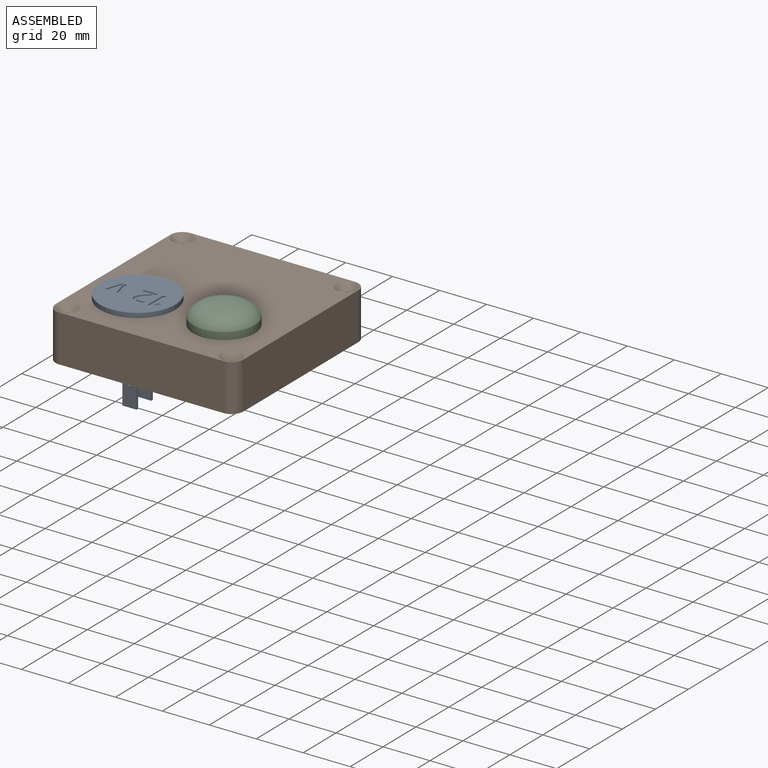
[diagram: assembled view]
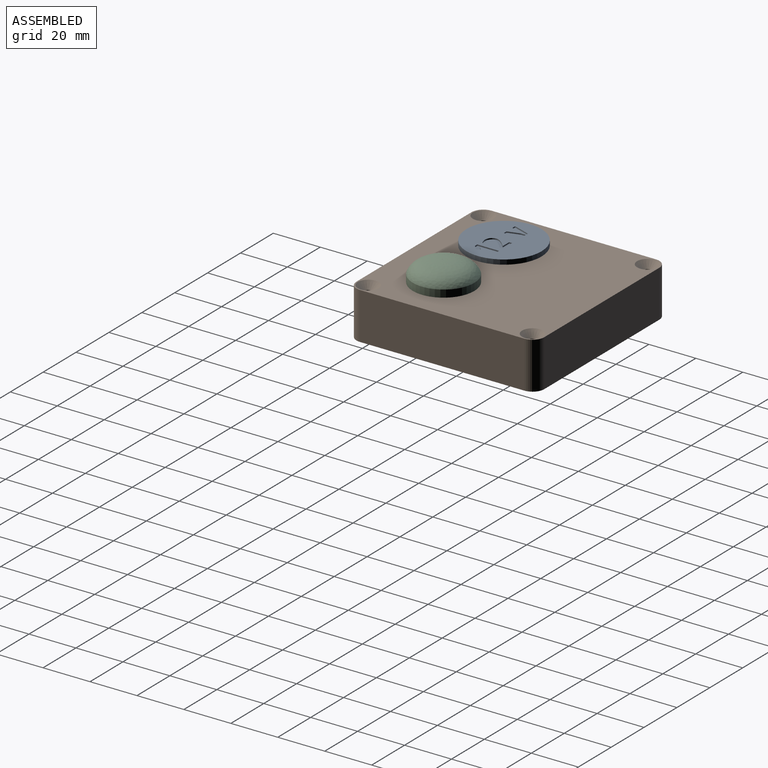
[diagram: assembled view, second angle]
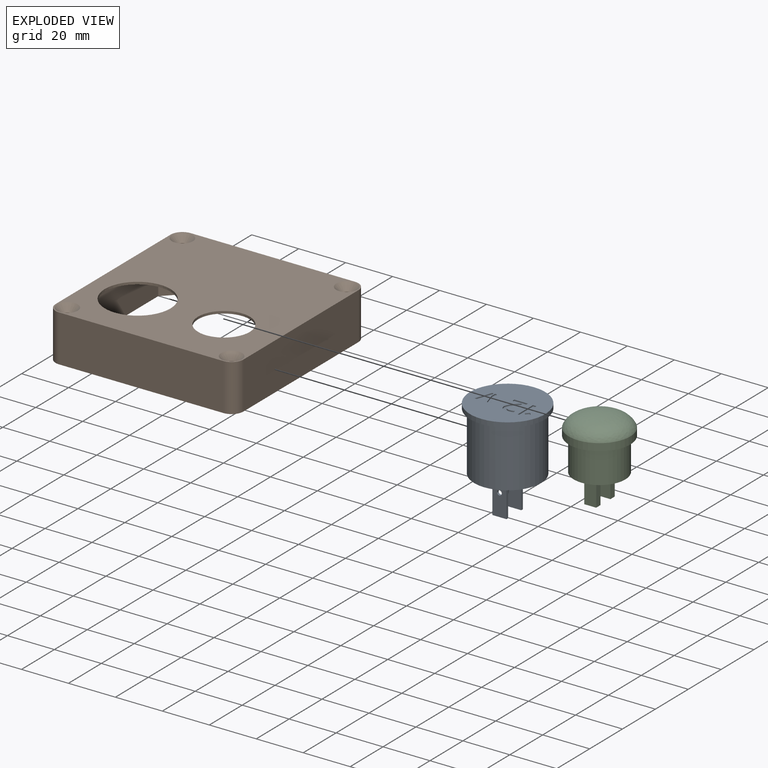
[diagram: exploded view]
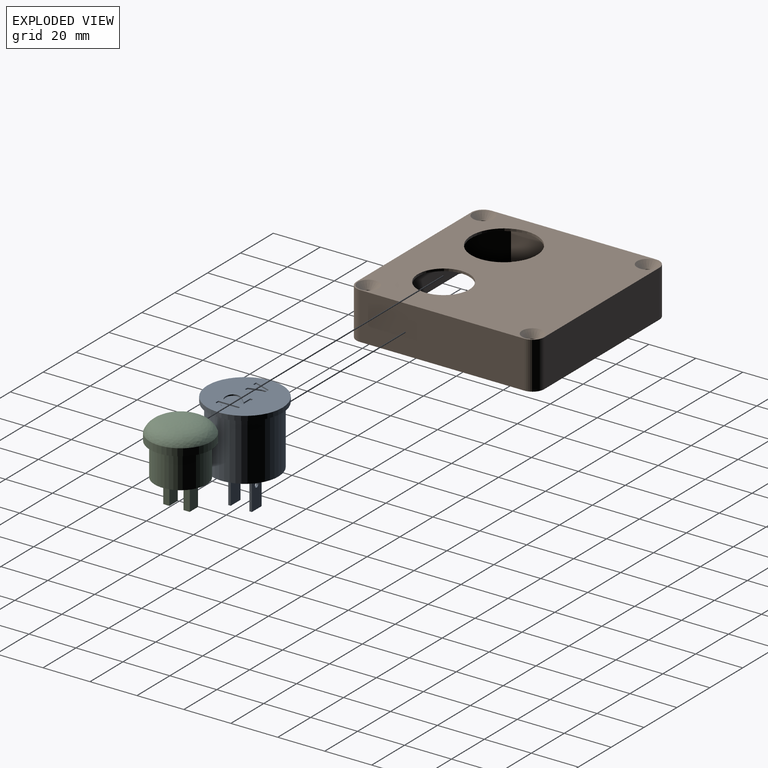
[diagram: exploded view, second angle]
ASSEMBLY  parts=3 mates=2
PART A: 71 faces, bbox 32x32x42 mm
  f0: plane 32x32mm, normal (0,0,1), area 741.5mm2, adj f2,f17,f18,f19,f20,f21,f23,f24
  f1: plane 28.5x28.5mm, normal (0,0,-1), area 625.9mm2, adj f4,f5,f6,f7,f8,f10,f11,f12
  f2: cylinder r=16mm len=32mm, axis (0,0,-1), area 201.1mm2, adj f0,f3
  f3: plane 32x32mm, normal (0,0,-1), area 166.3mm2, adj f2,f4
  f4: cylinder r=14.25mm len=28.5mm, axis (0,0,-1), area 2238.4mm2, adj f1,f3
  f5: plane 15x6mm, normal (1,0,0), area 86.9mm2, adj f1,f6,f8,f9,f16
  f6: plane 15x1mm, normal (0,-1,0), area 15mm2, adj f1,f5,f7,f9
  f7: plane 15x6mm, normal (-1,0,0), area 86.9mm2, adj f1,f6,f8,f9,f16
  f8: plane 15x1mm, normal (0,1,0), area 15mm2, adj f1,f5,f7,f9
  f9: plane 6x1mm, normal (0,0,-1), area 6mm2, adj f5,f6,f7,f8
  f10: plane 15x1mm, normal (0,-1,0), area 15mm2, adj f1,f11,f13,f14
  f11: plane 15x6mm, normal (-1,0,0), area 86.9mm2, adj f1,f10,f12,f14,f15
  f12: plane 15x1mm, normal (0,1,0), area 15mm2, adj f1,f11,f13,f14
  f13: plane 15x6mm, normal (1,0,0), area 86.9mm2, adj f1,f10,f12,f14,f15
  f14: plane 6x1mm, normal (0,0,-1), area 6mm2, adj f10,f11,f12,f13
  f15: cylinder r=1mm len=2mm, axis (-1,0,0), area 6.3mm2, adj f11,f13
  f16: cylinder r=1mm len=2mm, axis (-1,0,0), area 6.3mm2, adj f5,f7
  f17: plane 1.71x0.5mm, normal (-1,0,0), area 0.9mm2, adj f0,f18,f21,f22
  f18: plane 5.04x1.51mm, normal (-0.29,-0.96,0), area 2.6mm2, adj f0,f17,f19,f22
  f19: plane 2.1x0.5mm, normal (0,-1,0), area 1mm2, adj f0,f18,f20,f22
  f20: plane 0.73x0.5mm, normal (1,0,0), area 0.4mm2, adj f0,f19,f21,f22
  f21: plane 7.13x2.49mm, normal (0.33,0.94,0), area 3.8mm2, adj f0,f17,f20,f22
  f22: plane 7.13x3.22mm, normal (0,0,1), area 10.3mm2, adj f17,f18,f19,f20,f21
  f23: plane 1.72x0.5mm, normal (-1,0,0), area 0.9mm2, adj f0,f24,f27,f28
  f24: plane 7.13x2.49mm, normal (0.33,-0.94,0), area 3.8mm2, adj f0,f23,f25,f28
  f25: plane 0.73x0.5mm, normal (1,0,0), area 0.4mm2, adj f0,f24,f26,f28
  f26: plane 2.1x0.5mm, normal (0,1,0), area 1mm2, adj f0,f25,f27,f28
  f27: plane 5.04x1.5mm, normal (-0.28,0.96,0), area 2.6mm2, adj f0,f23,f26,f28
  f28: plane 7.13x3.22mm, normal (0,0,1), area 10.3mm2, adj f23,f24,f25,f26,f27
  f29: extruded ~1.01x0.5mm, area 0.5mm2, adj f0,f30,f61,f62
  f30: extruded ~0.97x0.5mm, area 0.5mm2, adj f0,f29,f31,f62
  f31: extruded ~0.91x0.56mm, area 0.5mm2, adj f0,f30,f32,f62
  f32: extruded ~0.96x0.67mm, area 0.6mm2, adj f0,f31,f33,f62
  f33: extruded ~1.4x0.5mm, area 0.7mm2, adj f0,f32,f34,f62
  f34: extruded ~0.65x0.5mm, area 0.3mm2, adj f0,f33,f35,f62
  f35: extruded ~0.71x0.5mm, area 0.4mm2, adj f0,f34,f36,f62
  f36: extruded ~0.69x0.5mm, area 0.4mm2, adj f0,f35,f37,f62
  f37: extruded ~0.56x0.5mm, area 0.3mm2, adj f0,f36,f38,f62
  f38: plane 0.93x0.5mm, normal (0.43,-0.9,0), area 0.5mm2, adj f0,f37,f39,f62
  f39: extruded ~0.5x0.4mm, area 0.2mm2, adj f0,f38,f40,f62
  f40: extruded ~0.5x0.43mm, area 0.2mm2, adj f0,f39,f41,f62
  f41: extruded ~0.56x0.5mm, area 0.3mm2, adj f0,f40,f42,f62
  f42: extruded ~0.81x0.5mm, area 0.4mm2, adj f0,f41,f43,f62
  f43: extruded ~0.53x0.5mm, area 0.3mm2, adj f0,f42,f44,f62
  f44: extruded ~0.52x0.5mm, area 0.3mm2, adj f0,f43,f45,f62
  f45: extruded ~0.5x0.48mm, area 0.3mm2, adj f0,f44,f46,f62
  f46: extruded ~0.74x0.5mm, area 0.4mm2, adj f0,f45,f47,f62
  f47: extruded ~0.9x0.5mm, area 0.5mm2, adj f0,f46,f48,f62
  f48: extruded ~0.97x0.63mm, area 0.6mm2, adj f0,f47,f49,f62
  f49: extruded ~0.98x0.85mm, area 0.6mm2, adj f0,f48,f50,f62
  f50: extruded ~0.93x0.91mm, area 0.7mm2, adj f0,f49,f51,f62
  f51: extruded ~0.87x0.77mm, area 0.6mm2, adj f0,f50,f52,f62
  f52: extruded ~0.63x0.55mm, area 0.4mm2, adj f0,f51,f53,f62
  f53: plane 1.41x0.5mm, normal (0,-1,0), area 0.7mm2, adj f0,f52,f54,f62
  f54: plane 5.75x0.5mm, normal (1,0,0), area 2.9mm2, adj f0,f53,f55,f62
  f55: plane 1.22x0.5mm, normal (0,1,0), area 0.6mm2, adj f0,f54,f56,f62
  f56: plane 3.93x0.5mm, normal (-1,0,0), area 2mm2, adj f0,f55,f57,f62
  f57: extruded ~0.61x0.58mm, area 0.4mm2, adj f0,f56,f58,f62
  f58: extruded ~0.79x0.77mm, area 0.6mm2, adj f0,f57,f59,f62
  f59: extruded ~0.9x0.84mm, area 0.6mm2, adj f0,f58,f60,f62
  f60: extruded ~0.99x0.77mm, area 0.6mm2, adj f0,f59,f61,f62
  f61: extruded ~1.03x0.57mm, area 0.6mm2, adj f0,f29,f60,f62
  f62: plane 9.32x5.85mm, normal (0,0,1), area 24mm2, adj f29,f30,f31,f32,f33,f34,f35,f36
  f63: plane 1.53x0.5mm, normal (1,0,0), area 0.8mm2, adj f0,f64,f69,f70
  f64: plane 9.26x0.5mm, normal (0,1,0), area 4.6mm2, adj f0,f63,f65,f70
  f65: plane 1.53x0.5mm, normal (-1,0,0), area 0.8mm2, adj f0,f64,f66,f70
  f66: plane 2.35x2.35mm, normal (-0.71,-0.71,0), area 1.7mm2, adj f0,f65,f67,f70
  f67: plane 1.08x1.08mm, normal (0.71,-0.71,0), area 0.8mm2, adj f0,f66,f68,f70
  f68: plane 1.27x1.27mm, normal (0.71,0.71,0), area 0.9mm2, adj f0,f67,f69,f70
  f69: plane 7.1x0.5mm, normal (0,-1,0), area 3.5mm2, adj f0,f63,f68,f70
  f70: plane 9.26x3.88mm, normal (0,0,1), area 18.1mm2, adj f63,f64,f65,f66,f67,f68,f69
PART B: 29 faces, bbox 80x80x20 mm
  f0: plane 19x13mm, normal (-0.71,-0.71,0), area 349.3mm2, adj f1,f2,f3,f4
  f1: plane 80x80mm, normal (0,0,-1), area 594.1mm2, adj f0,f2,f3,f5,f6,f7,f8,f9
  f2: plane 52x19mm, normal (0,-1,0), area 988mm2, adj f0,f1,f4,f16
  f3: plane 52x19mm, normal (-1,0,0), area 988mm2, adj f0,f1,f4,f15
  f4: plane 78x78mm, normal (0,0,-1), area 4750.1mm2, adj f0,f2,f3,f5,f6,f12,f13,f14
  f5: plane 52x19mm, normal (1,0,0), area 988mm2, adj f1,f4,f14,f16
  f6: plane 52x19mm, normal (0,1,0), area 988mm2, adj f1,f4,f14,f15
  f7: plane 70x20mm, normal (1,0,0), area 1400mm2, adj f1,f11,f25,f28
  f8: plane 70x20mm, normal (0,1,0), area 1400mm2, adj f1,f11,f25,f26
  f9: plane 70x20mm, normal (-1,0,0), area 1400mm2, adj f1,f11,f26,f27
  f10: plane 70x20mm, normal (0,-1,0), area 1400mm2, adj f1,f11,f27,f28
  f11: plane 80x80mm, normal (0,0,1), area 5130.4mm2, adj f7,f8,f9,f10,f12,f13,f18,f20
  f12: cylinder r=14mm len=28mm, axis (0,0,1), area 88mm2, adj f4,f11
  f13: cylinder r=11mm len=22mm, axis (0,0,1), area 69.1mm2, adj f4,f11
  f14: plane 19x13mm, normal (0.71,0.71,0), area 349.3mm2, adj f1,f4,f5,f6
  f15: plane 19x13mm, normal (-0.71,0.71,0), area 349.3mm2, adj f1,f3,f4,f6
  f16: plane 19x13mm, normal (0.71,-0.71,0), area 349.3mm2, adj f1,f2,f4,f5
  f17: cylinder r=1.75mm len=17.27mm, axis (0,0,1), area 189.9mm2, adj f1,f18
  f18: cone r=1.75mm half-angle=45deg, axis (0,0,1), area 75.6mm2, adj f11,f17
  f19: cylinder r=1.75mm len=17.27mm, axis (0,0,1), area 189.9mm2, adj f1,f20
  f20: cone r=1.75mm half-angle=45deg, axis (0,0,1), area 75.6mm2, adj f11,f19
  f21: cylinder r=1.75mm len=17.27mm, axis (0,0,1), area 189.9mm2, adj f1,f22
  f22: cone r=1.75mm half-angle=45deg, axis (0,0,1), area 75.6mm2, adj f11,f21
  f23: cylinder r=1.75mm len=17.27mm, axis (0,0,1), area 189.9mm2, adj f1,f24
  f24: cone r=1.75mm half-angle=45deg, axis (0,0,1), area 75.6mm2, adj f11,f23
  f25: cylinder r=5mm len=20mm, axis (0,0,1), area 157.1mm2, adj f1,f7,f8,f11
  f26: cylinder r=5mm len=20mm, axis (0,0,-1), area 157.1mm2, adj f1,f8,f9,f11
  f27: cylinder r=5mm len=20mm, axis (0,0,1), area 157.1mm2, adj f1,f9,f10,f11
  f28: cylinder r=5mm len=20mm, axis (0,0,-1), area 157.1mm2, adj f1,f7,f10,f11
PART C: 15 faces, bbox 26.2x26.2x33.5 mm
  f0: plane 22x22mm, normal (0,0,-1), area 353.4mm2, adj f4,f5,f6,f7,f8,f10,f11,f12
  f1: revolved ~26.23x26.23mm, area 678.5mm2, adj f2
  f2: cylinder r=13.11mm len=26.23mm, axis (0,0,-1), area 257.3mm2, adj f1,f3
  f3: plane 26.23x26.23mm, normal (0,0,-1), area 160.1mm2, adj f2,f4
  f4: cylinder r=11mm len=22mm, axis (0,0,-1), area 967.6mm2, adj f0,f3
  f5: plane 11x2.64mm, normal (0,-1,0), area 29.1mm2, adj f0,f6,f8,f9
  f6: plane 11x5.06mm, normal (-1,0,0), area 55.7mm2, adj f0,f5,f7,f9
  f7: plane 11x2.64mm, normal (0,1,0), area 29.1mm2, adj f0,f6,f8,f9
  f8: plane 11x5.06mm, normal (1,0,0), area 55.7mm2, adj f0,f5,f7,f9
  f9: plane 5.06x2.64mm, normal (0,0,-1), area 13.4mm2, adj f5,f6,f7,f8
  f10: plane 11x5.06mm, normal (1,0,0), area 55.7mm2, adj f0,f11,f13,f14
  f11: plane 11x2.64mm, normal (0,-1,0), area 29.1mm2, adj f0,f10,f12,f14
  f12: plane 11x5.06mm, normal (-1,0,0), area 55.7mm2, adj f0,f11,f13,f14
  f13: plane 11x2.64mm, normal (0,1,0), area 29.1mm2, adj f0,f10,f12,f14
  f14: plane 5.06x2.64mm, normal (0,0,-1), area 13.4mm2, adj f10,f11,f12,f13
PLACE A rot(axis=(0,0,-1),90deg) t=(-19.05,-25,-5)mm
PLACE B t=(0,-10,0)mm
PLACE C rot(axis=(0,0,1),90deg) t=(17.71,-25,6)mm
MATE fastened C.f2 <-> B.f13  axis (0,0,-1) through (17.71,-25,20)mm
MATE fastened A.f2 <-> B.f12  axis (0,0,-1) through (-19.05,-25,20)mm
